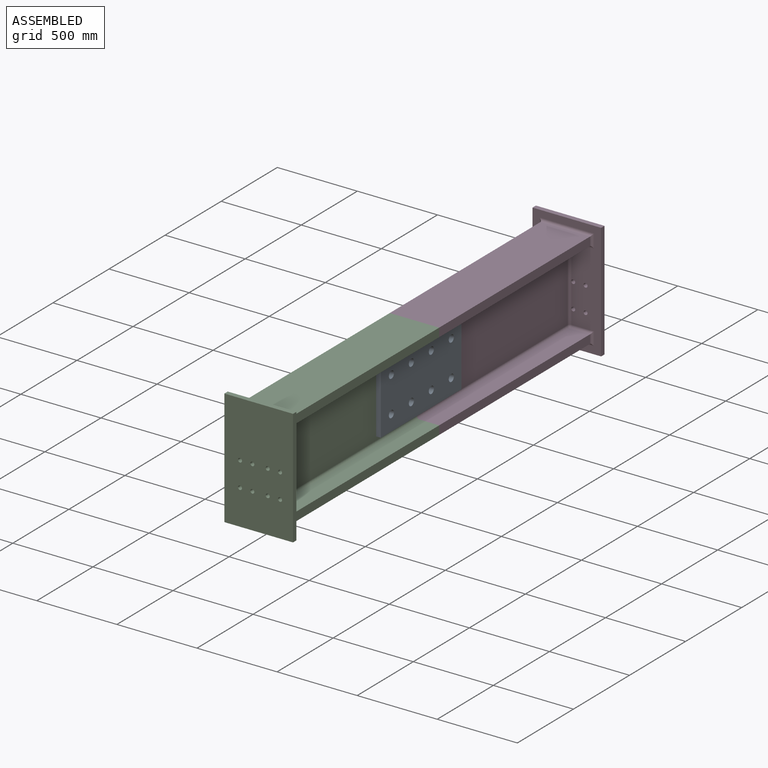
[diagram: assembled view]
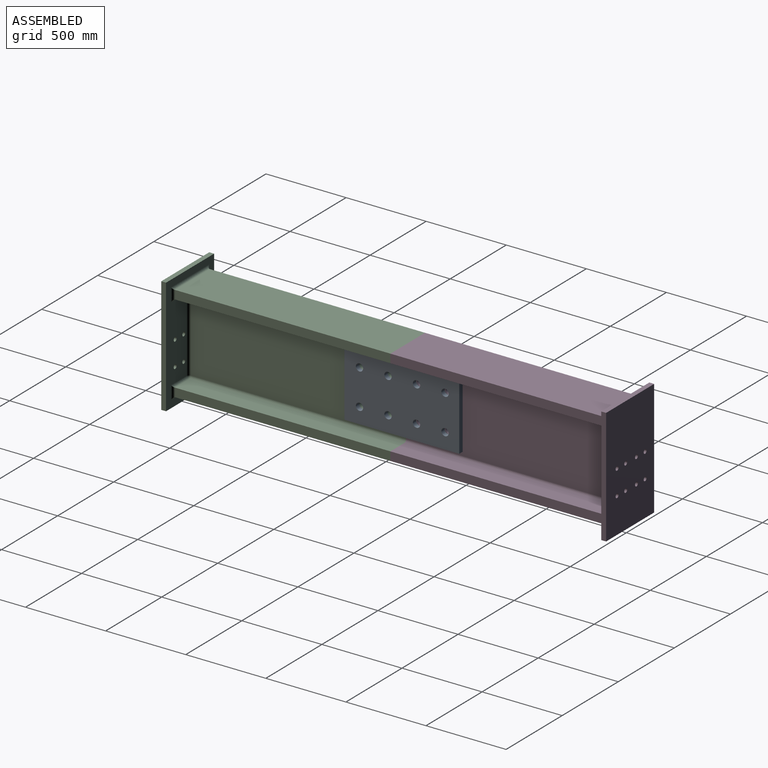
[diagram: assembled view, second angle]
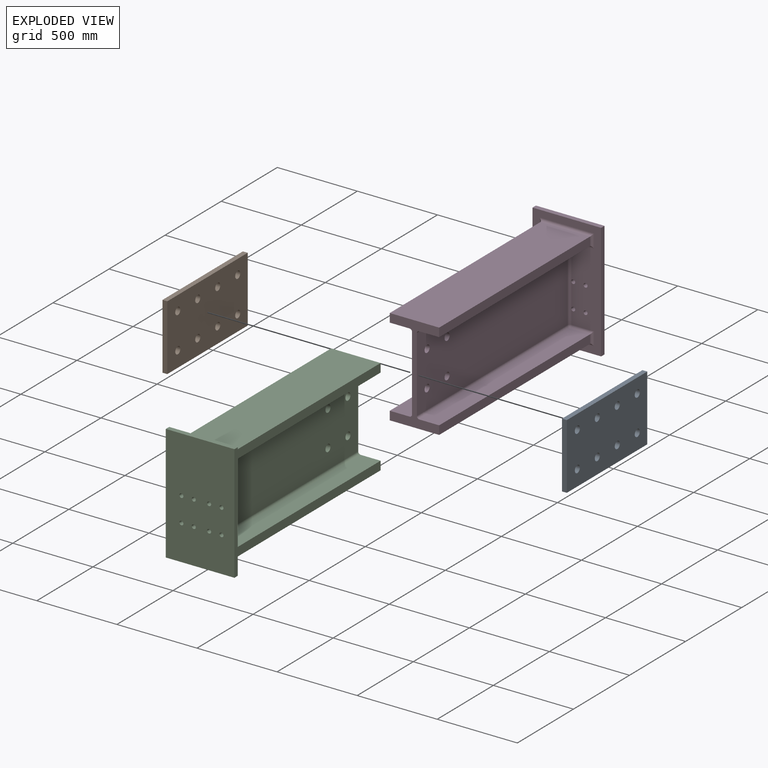
[diagram: exploded view]
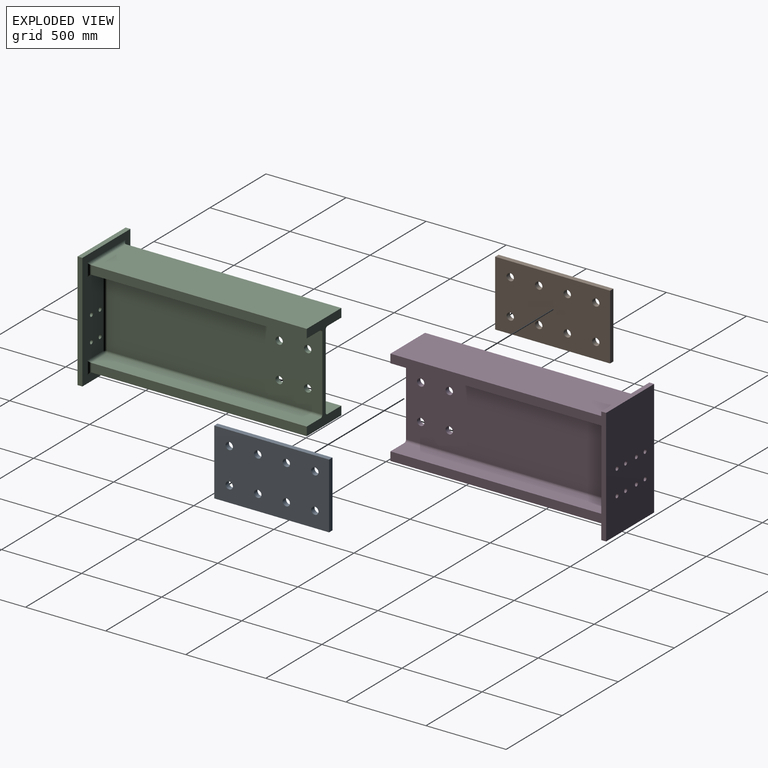
[diagram: exploded view, second angle]
ASSEMBLY  parts=4 mates=2
PART A: 14 faces, bbox 30x717.3x410.6 mm
  f0: plane 717.26x30mm, normal (0,0,1), area 21517.8mm2, adj f1,f10,f12,f13
  f1: plane 410.58x30mm, normal (0,1,0), area 12317.5mm2, adj f0,f2,f12,f13
  f2: plane 717.26x30mm, normal (0,0,-1), area 21517.8mm2, adj f1,f10,f12,f13
  f3: cylinder r=22.76mm len=45.52mm, axis (1,0,0), area 4290.4mm2, adj f12,f13
  f4: cylinder r=22.76mm len=45.52mm, axis (1,0,0), area 4290.4mm2, adj f12,f13
  f5: cylinder r=22.76mm len=45.52mm, axis (1,0,0), area 4290.4mm2, adj f12,f13
  f6: cylinder r=22.76mm len=45.52mm, axis (1,0,0), area 4290.4mm2, adj f12,f13
  f7: cylinder r=22.76mm len=45.52mm, axis (1,0,0), area 4290.4mm2, adj f12,f13
  f8: cylinder r=22.76mm len=45.52mm, axis (1,0,0), area 4290.4mm2, adj f12,f13
  f9: cylinder r=22.76mm len=45.52mm, axis (1,0,0), area 4290.4mm2, adj f12,f13
  f10: plane 410.58x30mm, normal (0,-1,0), area 12317.5mm2, adj f0,f2,f12,f13
  f11: cylinder r=22.76mm len=45.52mm, axis (1,0,0), area 4290.4mm2, adj f12,f13
  f12: plane 717.26x410.58mm, normal (-1,0,0), area 281473.6mm2, adj f0,f1,f2,f3,f4,f5,f6,f7
  f13: plane 717.26x410.58mm, normal (1,0,0), area 281473.6mm2, adj f0,f1,f2,f3,f4,f5,f6,f7
PART B: same geometry as A
PART C: 51 faces, bbox 428.5x1388.7x725.5 mm
  f0: plane 725.47x428.5mm, normal (0,-1,0), area 221533mm2, adj f1,f23,f24,f25,f26,f28,f30,f31
  f1: cylinder r=15.2mm len=466.87mm, axis (0,0,-1), area 11078.7mm2, adj f0,f10,f39,f42,f43,f44
  f2: plane 1343.47x54.1mm, normal (-1,0,0), area 72681.7mm2, adj f3,f13,f14,f33
  f3: plane 1343.47x124.05mm, normal (0,0,-1), area 166657.3mm2, adj f2,f14,f15,f28
  f4: plane 1343.47x466.87mm, normal (-1,0,0), area 620718.9mm2, adj f14,f15,f17,f19,f20,f21,f22,f31
  f5: plane 1343.47x124.05mm, normal (0,0,1), area 166657.3mm2, adj f6,f14,f17,f30
  f6: plane 1343.47x54.1mm, normal (-1,0,0), area 72681.7mm2, adj f5,f7,f14,f36
  f7: plane 1343.47x308.5mm, normal (0,0,-1), area 414460.1mm2, adj f6,f8,f14,f38
  f8: plane 1343.47x54.1mm, normal (1,0,0), area 72681.7mm2, adj f7,f9,f14,f40
  f9: plane 1343.47x124.05mm, normal (0,0,1), area 166657.3mm2, adj f8,f14,f18,f41
  f10: plane 1343.47x466.87mm, normal (1,0,0), area 620718.9mm2, adj f1,f14,f16,f18,f19,f20,f21,f22
  f11: plane 1343.47x124.05mm, normal (0,0,-1), area 166657.3mm2, adj f12,f14,f16,f37
  f12: plane 1343.47x54.1mm, normal (1,0,0), area 72681.7mm2, adj f11,f13,f14,f35
  f13: plane 1343.47x308.5mm, normal (0,0,1), area 414460.1mm2, adj f2,f12,f14,f34
  f14: plane 605.47x308.5mm, normal (0,-1,0), area 48496.2mm2, adj f2,f3,f4,f5,f6,f7,f8,f9
  f15: cylinder r=15.2mm len=1343.47mm, axis (0,-1,0), area 32076.8mm2, adj f3,f4,f14,f29
  f16: cylinder r=15.2mm len=1343.47mm, axis (0,1,0), area 32076.8mm2, adj f10,f11,f14,f39
  f17: cylinder r=15.2mm len=1343.47mm, axis (0,1,0), area 32076.8mm2, adj f4,f5,f14,f32
  f18: cylinder r=15.2mm len=1343.47mm, axis (0,-1,0), area 32076.8mm2, adj f9,f10,f14,f42
  f19: cylinder r=22.76mm len=45.52mm, axis (-1,0,0), area 4290.4mm2, adj f4,f10
  f20: cylinder r=22.76mm len=45.52mm, axis (-1,0,0), area 4290.4mm2, adj f4,f10
  f21: cylinder r=22.76mm len=45.52mm, axis (-1,0,0), area 4290.4mm2, adj f4,f10
  f22: cylinder r=22.76mm len=45.52mm, axis (-1,0,0), area 4290.4mm2, adj f4,f10
  f23: plane 428.5x30mm, normal (0,0,1), area 12855mm2, adj f0,f24,f26,f27
  f24: plane 725.47x30mm, normal (1,0,0), area 21764.2mm2, adj f0,f23,f25,f27
  f25: plane 428.5x30mm, normal (0,0,-1), area 12855mm2, adj f0,f24,f26,f27
  f26: plane 725.47x30mm, normal (-1,0,0), area 21764.2mm2, adj f0,f23,f25,f27
  f27: plane 725.47x428.5mm, normal (0,1,0), area 306938.1mm2, adj f23,f24,f25,f26,f43,f44,f45,f46
  f28: cylinder r=15.2mm len=139.25mm, axis (-1,0,0), area 3093.7mm2, adj f0,f3,f29,f33
  f29: sphere r=15.2mm, area 362.9mm2, adj f15,f28,f31
  f30: cylinder r=15.2mm len=139.25mm, axis (1,0,0), area 3093.7mm2, adj f0,f5,f32,f36
  f31: cylinder r=15.2mm len=466.87mm, axis (0,0,1), area 11147.1mm2, adj f0,f4,f29,f32
  f32: sphere r=15.2mm, area 362.9mm2, adj f17,f30,f31
  f33: cylinder r=15.2mm len=84.5mm, axis (0,0,1), area 1555.5mm2, adj f0,f2,f28,f34
  f34: cylinder r=15.2mm len=338.9mm, axis (1,0,0), area 7629.5mm2, adj f0,f13,f33,f35
  f35: cylinder r=15.2mm len=84.5mm, axis (0,0,-1), area 1555.5mm2, adj f0,f12,f34,f37
  f36: cylinder r=15.2mm len=84.5mm, axis (0,0,1), area 1555.5mm2, adj f0,f6,f30,f38
  f37: cylinder r=15.2mm len=139.25mm, axis (-1,0,0), area 3093.7mm2, adj f0,f11,f35,f39
  f38: cylinder r=15.2mm len=338.9mm, axis (-1,0,0), area 7629.5mm2, adj f0,f7,f36,f40
  f39: sphere r=15.2mm, area 362.9mm2, adj f1,f16,f37
  f40: cylinder r=15.2mm len=84.5mm, axis (0,0,-1), area 1555.5mm2, adj f0,f8,f38,f41
  f41: cylinder r=15.2mm len=139.25mm, axis (1,0,0), area 3093.7mm2, adj f0,f9,f40,f42
  f42: sphere r=15.2mm, area 362.9mm2, adj f1,f18,f41
  f43: cylinder r=12.5mm len=30.31mm, axis (0,1,0), area 2359.1mm2, adj f0,f1,f27
  f44: cylinder r=12.5mm len=30.31mm, axis (0,1,0), area 2359.1mm2, adj f0,f1,f27
  f45: cylinder r=12.5mm len=30mm, axis (0,1,0), area 2356.2mm2, adj f0,f27
  f46: cylinder r=12.5mm len=30mm, axis (0,1,0), area 2356.2mm2, adj f0,f27
  f47: cylinder r=12.5mm len=30mm, axis (0,1,0), area 2356.2mm2, adj f0,f27
  f48: cylinder r=12.5mm len=30mm, axis (0,1,0), area 2356.2mm2, adj f0,f27
  f49: cylinder r=12.5mm len=30mm, axis (0,1,0), area 2356.2mm2, adj f0,f27
  f50: cylinder r=12.5mm len=30mm, axis (0,1,0), area 2356.2mm2, adj f0,f27
PART D: same geometry as C
PLACE A t=(60,-5.06,0)mm
PLACE B at identity
PLACE C rot(axis=(0,0,1),180deg) t=(16.5,-2717.34,0)mm
PLACE D at identity
MATE fastened C.f14 <-> D.f14  axis (0,1,0) through (8.25,-1358.67,-201.3)mm
MATE fastened A.f4 <-> C.f22  axis (-1,0,0) through (23.25,-1628.33,-90.2)mm
